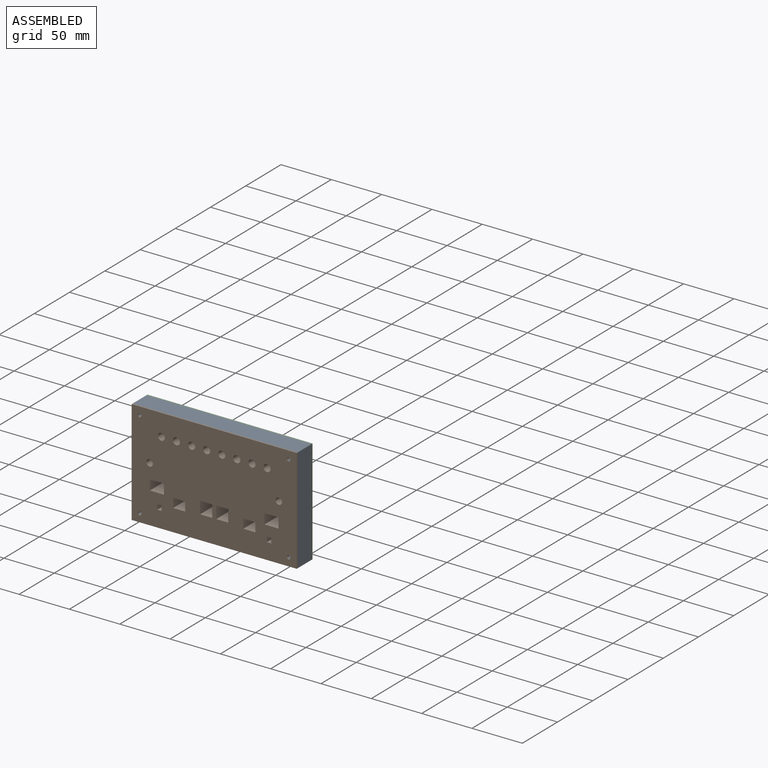
[diagram: assembled view]
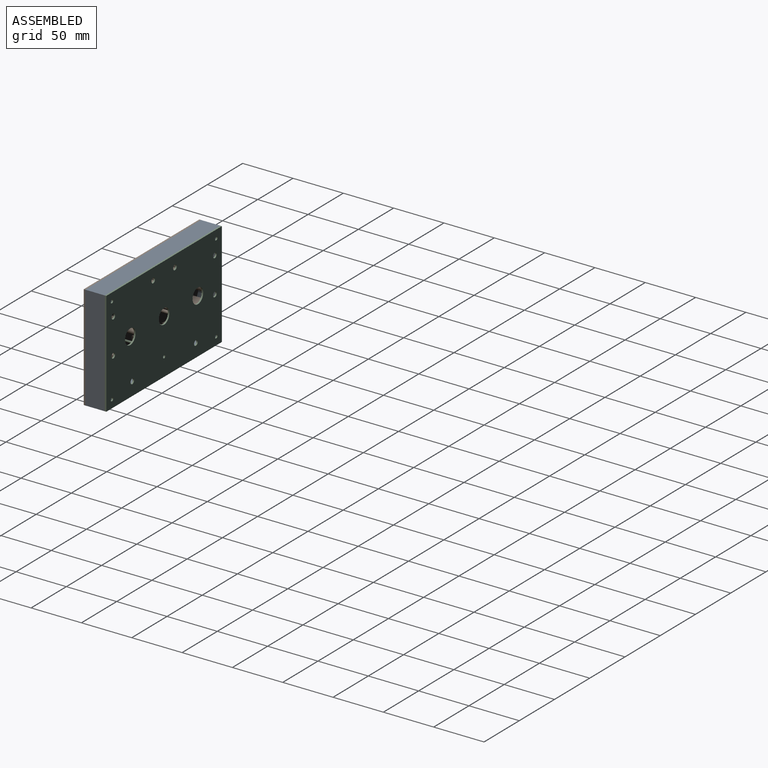
[diagram: assembled view, second angle]
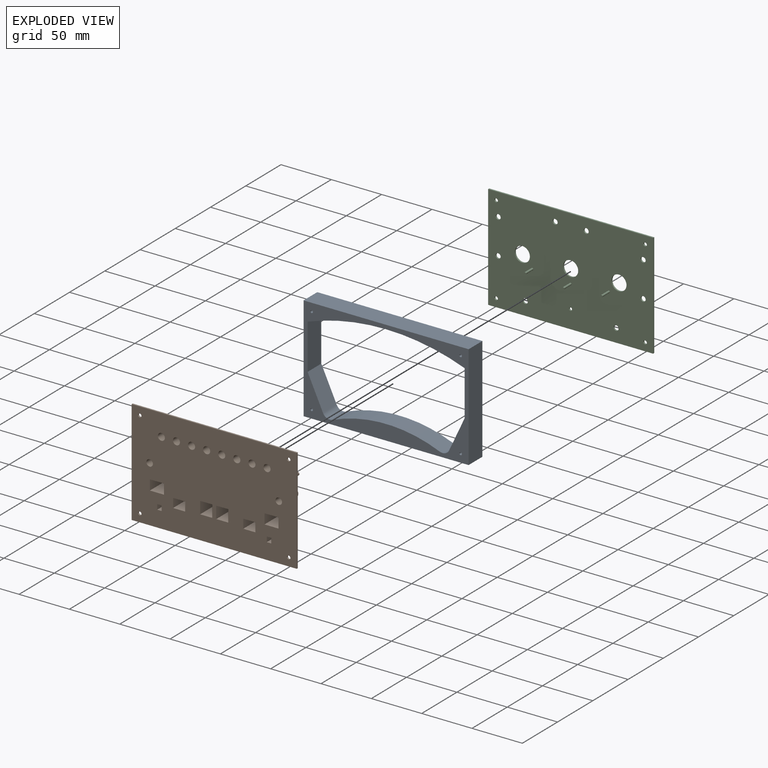
[diagram: exploded view]
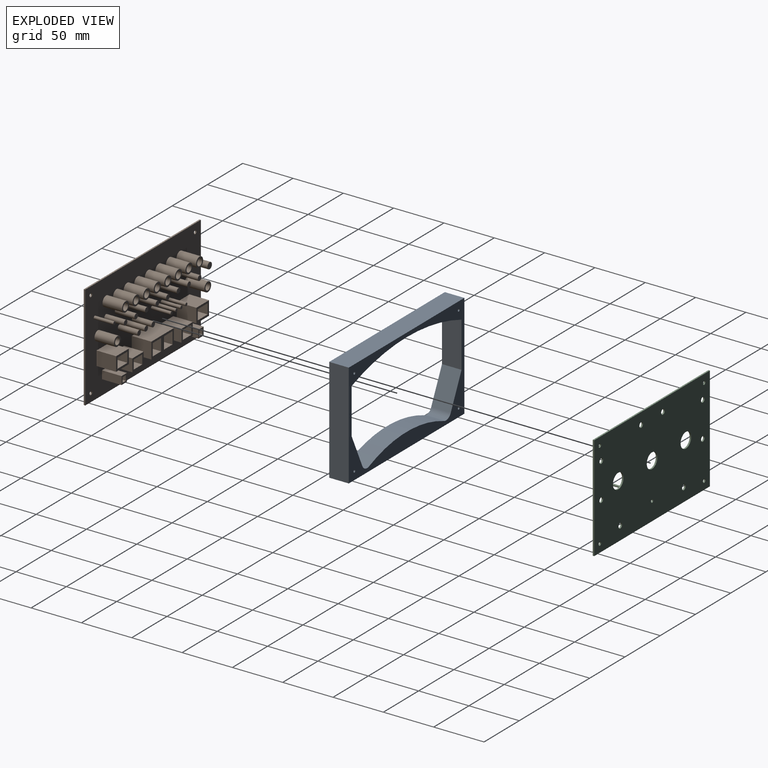
[diagram: exploded view, second angle]
ASSEMBLY  parts=3 mates=2
PART A: 18 faces, bbox 164x19.4x104 mm
  f0: plane 104x19.43mm, normal (1,0,0), area 2020.7mm2, adj f1,f11,f12,f13
  f1: plane 164x19.43mm, normal (0,0,1), area 3186.5mm2, adj f0,f2,f12,f13
  f2: plane 104x19.43mm, normal (-1,0,0), area 2020.7mm2, adj f1,f11,f12,f13
  f3: plane 45.08x19.43mm, normal (1,0,0), area 875.8mm2, adj f4,f10,f12,f13
  f4: cylinder r=224mm len=156mm, axis (0,1,0), area 3095.9mm2, adj f3,f5,f12,f13
  f5: plane 45.08x19.43mm, normal (-1,0,0), area 875.8mm2, adj f4,f6,f12,f13
  f6: plane 32.77x19.43mm, normal (-0.91,0,0.42), area 702.6mm2, adj f5,f7,f12,f13
  f7: cylinder r=7.4mm len=19.43mm, axis (0,1,0), area 219.6mm2, adj f6,f8,f12,f13
  f8: cylinder r=139mm len=106.36mm, axis (0,1,0), area 2120.7mm2, adj f7,f9,f12,f13
  f9: cylinder r=7.4mm len=19.43mm, axis (0,1,0), area 219.6mm2, adj f8,f10,f12,f13
  f10: plane 32.77x19.43mm, normal (0.91,0,0.42), area 702.6mm2, adj f3,f9,f12,f13
  f11: plane 164x19.43mm, normal (0,0,-1), area 3186.5mm2, adj f0,f2,f12,f13
  f12: plane 164x104mm, normal (0,-1,0), area 4222.6mm2, adj f0,f1,f2,f3,f4,f5,f6,f7
  f13: plane 164x104mm, normal (0,1,0), area 4222.6mm2, adj f0,f1,f2,f3,f4,f5,f6,f7
  f14: cylinder r=1.25mm len=19.43mm, axis (0,1,0), area 152.6mm2, adj f12,f13
  f15: cylinder r=1.25mm len=19.43mm, axis (0,1,0), area 152.6mm2, adj f12,f13
  f16: cylinder r=1.25mm len=19.43mm, axis (0,1,0), area 152.6mm2, adj f12,f13
  f17: cylinder r=1.25mm len=19.43mm, axis (0,1,0), area 152.6mm2, adj f12,f13
PART B: 141 faces, bbox 20.9x164x104 mm
  f0: cylinder r=3.5mm len=20.93mm, axis (-1,0,0), area 460.3mm2, adj f2,f136
  f1: cylinder r=5mm len=19.43mm, axis (-1,0,0), area 610.4mm2, adj f2,f108
  f2: plane 10x10mm, normal (1,0,0), area 40.1mm2, adj f0,f1
  f3: cylinder r=3.5mm len=20.93mm, axis (-1,0,0), area 460.3mm2, adj f5,f136
  f4: cylinder r=5mm len=19.43mm, axis (-1,0,0), area 610.4mm2, adj f5,f108
  f5: plane 10x10mm, normal (1,0,0), area 40.1mm2, adj f3,f4
  f6: cylinder r=3.5mm len=20.93mm, axis (-1,0,0), area 460.3mm2, adj f8,f136
  f7: cylinder r=5mm len=19.43mm, axis (-1,0,0), area 610.4mm2, adj f8,f108
  f8: plane 10x10mm, normal (1,0,0), area 40.1mm2, adj f6,f7
  f9: cylinder r=3.5mm len=20.93mm, axis (-1,0,0), area 460.3mm2, adj f11,f136
  f10: cylinder r=5mm len=19.43mm, axis (-1,0,0), area 610.4mm2, adj f11,f108
  f11: plane 10x10mm, normal (1,0,0), area 40.1mm2, adj f9,f10
  f12: cylinder r=3.5mm len=20.93mm, axis (-1,0,0), area 460.3mm2, adj f14,f136
  f13: cylinder r=5mm len=19.43mm, axis (-1,0,0), area 610.4mm2, adj f14,f108
  f14: plane 10x10mm, normal (1,0,0), area 40.1mm2, adj f12,f13
  f15: cylinder r=3.5mm len=20.93mm, axis (-1,0,0), area 460.3mm2, adj f17,f136
  f16: cylinder r=5mm len=19.43mm, axis (-1,0,0), area 610.4mm2, adj f17,f108
  f17: plane 10x10mm, normal (1,0,0), area 40.1mm2, adj f15,f16
  f18: cylinder r=3.5mm len=20.93mm, axis (-1,0,0), area 460.3mm2, adj f20,f136
  f19: cylinder r=5mm len=19.43mm, axis (-1,0,0), area 610.4mm2, adj f20,f108
  f20: plane 10x10mm, normal (1,0,0), area 40.1mm2, adj f18,f19
  f21: cylinder r=3.5mm len=20.93mm, axis (-1,0,0), area 460.3mm2, adj f23,f136
  f22: cylinder r=5mm len=19.43mm, axis (-1,0,0), area 610.4mm2, adj f23,f108
  f23: plane 10x10mm, normal (1,0,0), area 40.1mm2, adj f21,f22
  f24: cylinder r=3.25mm len=20.93mm, axis (-1,0,0), area 427.4mm2, adj f26,f136
  f25: cylinder r=4.76mm len=19.43mm, axis (-1,0,0), area 581.4mm2, adj f26,f108
  f26: plane 9.53x9.53mm, normal (1,0,0), area 38.1mm2, adj f24,f25
  f27: cylinder r=2.5mm len=19.43mm, axis (-1,0,0), area 305.2mm2, adj f28,f108
  f28: plane 5x5mm, normal (1,0,0), area 19.6mm2, adj f27
  f29: cylinder r=2.5mm len=19.43mm, axis (-1,0,0), area 305.2mm2, adj f30,f108
  f30: plane 5x5mm, normal (1,0,0), area 19.6mm2, adj f29
  f31: cylinder r=2.5mm len=19.43mm, axis (-1,0,0), area 305.2mm2, adj f32,f108
  f32: plane 5x5mm, normal (1,0,0), area 19.6mm2, adj f31
  f33: cylinder r=1.5mm len=19.43mm, axis (-1,0,0), area 183.1mm2, adj f34,f108
  f34: plane 3x3mm, normal (1,0,0), area 7.1mm2, adj f33
  f35: cylinder r=1.5mm len=19.43mm, axis (-1,0,0), area 183.1mm2, adj f36,f108
  f36: plane 3x3mm, normal (1,0,0), area 7.1mm2, adj f35
  f37: cylinder r=1.5mm len=19.43mm, axis (-1,0,0), area 183.1mm2, adj f38,f108
  f38: plane 3x3mm, normal (1,0,0), area 7.1mm2, adj f37
  f39: cylinder r=1.5mm len=19.43mm, axis (-1,0,0), area 183.1mm2, adj f40,f108
  f40: plane 3x3mm, normal (1,0,0), area 7.1mm2, adj f39
  f41: cylinder r=1.5mm len=19.43mm, axis (-1,0,0), area 183.1mm2, adj f42,f108
  f42: plane 3x3mm, normal (1,0,0), area 7.1mm2, adj f41
  f43: cylinder r=2.5mm len=19.43mm, axis (-1,0,0), area 305.2mm2, adj f44,f108
  f44: plane 5x5mm, normal (1,0,0), area 19.6mm2, adj f43
  f45: cylinder r=2.5mm len=19.43mm, axis (-1,0,0), area 305.2mm2, adj f46,f108
  f46: plane 5x5mm, normal (1,0,0), area 19.6mm2, adj f45
  f47: cylinder r=2.5mm len=19.43mm, axis (-1,0,0), area 305.2mm2, adj f48,f108
  f48: plane 5x5mm, normal (1,0,0), area 19.6mm2, adj f47
  f49: cylinder r=2.5mm len=19.43mm, axis (-1,0,0), area 305.2mm2, adj f50,f108
  f50: plane 5x5mm, normal (1,0,0), area 19.6mm2, adj f49
  f51: cylinder r=2.5mm len=19.43mm, axis (-1,0,0), area 305.2mm2, adj f52,f108
  f52: plane 5x5mm, normal (1,0,0), area 19.6mm2, adj f51
  f53: cylinder r=2.5mm len=19.43mm, axis (-1,0,0), area 305.2mm2, adj f54,f108
  f54: plane 5x5mm, normal (1,0,0), area 19.6mm2, adj f53
  f55: cylinder r=2.5mm len=19.43mm, axis (-1,0,0), area 305.2mm2, adj f56,f108
  f56: plane 5x5mm, normal (1,0,0), area 19.6mm2, adj f55
  f57: cylinder r=2.5mm len=19.43mm, axis (-1,0,0), area 305.2mm2, adj f58,f108
  f58: plane 5x5mm, normal (1,0,0), area 19.6mm2, adj f57
  f59: plane 20.93x12mm, normal (0,1,0), area 251.2mm2, adj f60,f70,f71,f136
  f60: plane 20.93x12mm, normal (0,0,-1), area 251.2mm2, adj f59,f61,f71,f136
  f61: plane 20.93x12mm, normal (0,-1,0), area 251.2mm2, adj f60,f70,f71,f136
  f62: plane 20.93x12mm, normal (0,0,1), area 251.2mm2, adj f63,f68,f71,f136
  f63: plane 20.93x12mm, normal (0,1,0), area 251.2mm2, adj f62,f64,f71,f136
  f64: plane 20.93x12mm, normal (0,0,-1), area 251.2mm2, adj f63,f68,f71,f136
  f65: plane 32x19.43mm, normal (0,0,1), area 621.8mm2, adj f66,f69,f71,f108
  f66: plane 19.43x16mm, normal (0,-1,0), area 310.9mm2, adj f65,f67,f71,f108
  f67: plane 32x19.43mm, normal (0,0,-1), area 621.8mm2, adj f66,f69,f71,f108
  f68: plane 20.93x12mm, normal (0,-1,0), area 251.2mm2, adj f62,f64,f71,f136
  f69: plane 19.43x16mm, normal (0,1,0), area 310.9mm2, adj f65,f67,f71,f108
  f70: plane 20.93x12mm, normal (0,0,1), area 251.2mm2, adj f59,f61,f71,f136
  f71: plane 32x16mm, normal (1,0,0), area 224mm2, adj f59,f60,f61,f62,f63,f64,f65,f66
  f72: plane 20.93x12mm, normal (0,0,1), area 251.2mm2, adj f73,f79,f80,f136
  f73: plane 20.93x9mm, normal (0,1,0), area 188.4mm2, adj f72,f74,f80,f136
  f74: plane 20.93x12mm, normal (0,0,-1), area 251.2mm2, adj f73,f79,f80,f136
  f75: plane 19.43x16mm, normal (0,0,1), area 310.9mm2, adj f76,f78,f80,f108
  f76: plane 19.43x12.5mm, normal (0,-1,0), area 242.9mm2, adj f75,f77,f80,f108
  f77: plane 19.43x16mm, normal (0,0,-1), area 310.9mm2, adj f76,f78,f80,f108
  f78: plane 19.43x12.5mm, normal (0,1,0), area 242.9mm2, adj f75,f77,f80,f108
  f79: plane 20.93x9mm, normal (0,-1,0), area 188.4mm2, adj f72,f74,f80,f136
  f80: plane 16x12.5mm, normal (1,0,0), area 92mm2, adj f72,f73,f74,f75,f76,f77,f78,f79
  f81: plane 20.93x14mm, normal (0,0,1), area 293mm2, adj f82,f88,f89,f136
  f82: plane 20.93x10mm, normal (0,1,0), area 209.3mm2, adj f81,f83,f89,f136
  f83: plane 20.93x14mm, normal (0,0,-1), area 293mm2, adj f82,f88,f89,f136
  f84: plane 19.43x18mm, normal (0,0,1), area 349.7mm2, adj f85,f87,f89,f108
  f85: plane 19.43x14mm, normal (0,-1,0), area 272mm2, adj f84,f86,f89,f108
  f86: plane 19.43x18mm, normal (0,0,-1), area 349.7mm2, adj f85,f87,f89,f108
  f87: plane 19.43x14mm, normal (0,1,0), area 272mm2, adj f84,f86,f89,f108
  f88: plane 20.93x10mm, normal (0,-1,0), area 209.3mm2, adj f81,f83,f89,f136
  f89: plane 18x14mm, normal (1,0,0), area 112mm2, adj f81,f82,f83,f84,f85,f86,f87,f88
  f90: plane 19.43x7.5mm, normal (0,0,1), area 145.7mm2, adj f91,f97,f98,f108
  f91: plane 19.43x8mm, normal (0,-1,0), area 155.4mm2, adj f90,f92,f98,f108
  f92: plane 19.43x7.5mm, normal (0,0,-1), area 145.7mm2, adj f91,f97,f98,f108
  f93: plane 20.93x4.5mm, normal (0,0,-1), area 94.2mm2, adj f94,f96,f98,f136
  f94: plane 20.93x5mm, normal (0,-1,0), area 104.7mm2, adj f93,f95,f98,f136
  f95: plane 20.93x4.5mm, normal (0,0,1), area 94.2mm2, adj f94,f96,f98,f136
  f96: plane 20.93x5mm, normal (0,1,0), area 104.7mm2, adj f93,f95,f98,f136
  f97: plane 19.43x8mm, normal (0,1,0), area 155.4mm2, adj f90,f92,f98,f108
  f98: plane 8x7.5mm, normal (1,0,0), area 37.5mm2, adj f90,f91,f92,f93,f94,f95,f96,f97
  f99: plane 19.43x18mm, normal (0,0,1), area 349.7mm2, adj f100,f106,f107,f108
  f100: plane 19.43x14mm, normal (0,-1,0), area 272mm2, adj f99,f101,f107,f108
  f101: plane 19.43x18mm, normal (0,0,-1), area 349.7mm2, adj f100,f106,f107,f108
  f102: plane 20.93x14mm, normal (0,0,1), area 293mm2, adj f103,f105,f107,f136
  f103: plane 20.93x10mm, normal (0,1,0), area 209.3mm2, adj f102,f104,f107,f136
  f104: plane 20.93x14mm, normal (0,0,-1), area 293mm2, adj f103,f105,f107,f136
  f105: plane 20.93x10mm, normal (0,-1,0), area 209.3mm2, adj f102,f104,f107,f136
  f106: plane 19.43x14mm, normal (0,1,0), area 272mm2, adj f99,f101,f107,f108
  f107: plane 18x14mm, normal (1,0,0), area 112mm2, adj f99,f100,f101,f102,f103,f104,f105,f106
  f108: plane 164x104mm, normal (1,0,0), area 14429.9mm2, adj f1,f4,f7,f10,f13,f16,f19,f22
  f109: plane 19.43x16mm, normal (0,0,1), area 310.9mm2, adj f108,f110,f116,f117
  f110: plane 19.43x12.5mm, normal (0,-1,0), area 242.9mm2, adj f108,f109,f111,f117
  f111: plane 19.43x16mm, normal (0,0,-1), area 310.9mm2, adj f108,f110,f116,f117
  f112: plane 20.93x12mm, normal (0,0,1), area 251.2mm2, adj f113,f115,f117,f136
  f113: plane 20.93x9mm, normal (0,1,0), area 188.4mm2, adj f112,f114,f117,f136
  f114: plane 20.93x12mm, normal (0,0,-1), area 251.2mm2, adj f113,f115,f117,f136
  f115: plane 20.93x9mm, normal (0,-1,0), area 188.4mm2, adj f112,f114,f117,f136
  f116: plane 19.43x12.5mm, normal (0,1,0), area 242.9mm2, adj f108,f109,f111,f117
  f117: plane 16x12.5mm, normal (1,0,0), area 92mm2, adj f109,f110,f111,f112,f113,f114,f115,f116
  f118: plane 19.43x7.5mm, normal (0,0,1), area 145.7mm2, adj f108,f119,f125,f126
  f119: plane 19.43x8mm, normal (0,-1,0), area 155.4mm2, adj f108,f118,f120,f126
  f120: plane 19.43x7.5mm, normal (0,0,-1), area 145.7mm2, adj f108,f119,f125,f126
  f121: plane 20.93x4.5mm, normal (0,0,1), area 94.2mm2, adj f122,f124,f126,f136
  f122: plane 20.93x5mm, normal (0,1,0), area 104.7mm2, adj f121,f123,f126,f136
  f123: plane 20.93x4.5mm, normal (0,0,-1), area 94.2mm2, adj f122,f124,f126,f136
  f124: plane 20.93x5mm, normal (0,-1,0), area 104.7mm2, adj f121,f123,f126,f136
  f125: plane 19.43x8mm, normal (0,1,0), area 155.4mm2, adj f108,f118,f120,f126
  f126: plane 8x7.5mm, normal (1,0,0), area 37.5mm2, adj f118,f119,f120,f121,f122,f123,f124,f125
  f127: cylinder r=4.76mm len=19.43mm, axis (-1,0,0), area 581.4mm2, adj f108,f129
  f128: cylinder r=3.25mm len=20.93mm, axis (-1,0,0), area 427.4mm2, adj f129,f136
  f129: plane 9.53x9.53mm, normal (1,0,0), area 38.1mm2, adj f127,f128
  f130: cylinder r=3.17mm len=19.43mm, axis (-1,0,0), area 387.6mm2, adj f108,f131
  f131: plane 6.35x6.35mm, normal (1,0,0), area 31.7mm2, adj f130
  f132: plane 104x1.5mm, normal (0,1,0), area 156mm2, adj f108,f133,f135,f136
  f133: plane 164x1.5mm, normal (0,0,1), area 246mm2, adj f108,f132,f134,f136
  f134: plane 104x1.5mm, normal (0,-1,0), area 156mm2, adj f108,f133,f135,f136
  f135: plane 164x1.5mm, normal (0,0,-1), area 246mm2, adj f108,f132,f134,f136
  f136: plane 164x104mm, normal (-1,0,0), area 15816.4mm2, adj f0,f3,f6,f9,f12,f15,f18,f21
  f137: cylinder r=1.7mm len=3.4mm, axis (1,0,0), area 16mm2, adj f108,f136
  f138: cylinder r=1.7mm len=3.4mm, axis (1,0,0), area 16mm2, adj f108,f136
  f139: cylinder r=1.7mm len=3.4mm, axis (1,0,0), area 16mm2, adj f108,f136
  f140: cylinder r=1.7mm len=3.4mm, axis (1,0,0), area 16mm2, adj f108,f136
PART C: 28 faces, bbox 12x164x104 mm
  f0: plane 104x1.5mm, normal (0,1,0), area 156mm2, adj f1,f14,f16,f17
  f1: plane 164x1.5mm, normal (0,0,1), area 246mm2, adj f0,f2,f16,f17
  f2: plane 104x1.5mm, normal (0,-1,0), area 156mm2, adj f1,f14,f16,f17
  f3: cylinder r=2.5mm len=5mm, axis (1,0,0), area 23.6mm2, adj f16,f17
  f4: cylinder r=2.5mm len=5mm, axis (1,0,0), area 23.6mm2, adj f16,f17
  f5: cylinder r=1.5mm len=3mm, axis (1,0,0), area 14.1mm2, adj f16,f17
  f6: cylinder r=2.5mm len=5mm, axis (1,0,0), area 23.6mm2, adj f16,f17
  f7: cylinder r=2.5mm len=5mm, axis (1,0,0), area 23.6mm2, adj f16,f17
  f8: cylinder r=2.5mm len=5mm, axis (1,0,0), area 23.6mm2, adj f16,f17
  f9: cylinder r=2.5mm len=5mm, axis (1,0,0), area 23.6mm2, adj f16,f17
  f10: cylinder r=2.5mm len=5mm, axis (1,0,0), area 23.6mm2, adj f16,f17
  f11: cylinder r=7.5mm len=15mm, axis (1,0,0), area 70.7mm2, adj f16,f17
  f12: cylinder r=7.5mm len=15mm, axis (1,0,0), area 70.7mm2, adj f16,f17
  f13: cylinder r=7.5mm len=15mm, axis (1,0,0), area 70.7mm2, adj f16,f17
  f14: plane 164x1.5mm, normal (0,0,-1), area 246mm2, adj f0,f2,f16,f17
  f15: cylinder r=2.5mm len=5mm, axis (1,0,0), area 23.6mm2, adj f16,f17
  f16: plane 164x104mm, normal (-1,0,0), area 16316mm2, adj f0,f1,f2,f3,f4,f5,f6,f7
  f17: plane 164x104mm, normal (1,0,0), area 16325.4mm2, adj f0,f1,f2,f3,f4,f5,f6,f7
  f18: cylinder r=1.7mm len=3.4mm, axis (1,0,0), area 16mm2, adj f16,f17
  f19: cylinder r=1.7mm len=3.4mm, axis (1,0,0), area 16mm2, adj f16,f17
  f20: cylinder r=1.7mm len=3.4mm, axis (1,0,0), area 16mm2, adj f16,f17
  f21: cylinder r=1.7mm len=3.4mm, axis (1,0,0), area 16mm2, adj f16,f17
  f22: cylinder r=1mm len=10.5mm, axis (1,0,0), area 66mm2, adj f16,f23
  f23: plane 2x2mm, normal (-1,0,0), area 3.1mm2, adj f22
  f24: cylinder r=1mm len=10.5mm, axis (1,0,0), area 66mm2, adj f16,f25
  f25: plane 2x2mm, normal (-1,0,0), area 3.1mm2, adj f24
  f26: cylinder r=1mm len=10.5mm, axis (1,0,0), area 66mm2, adj f16,f27
  f27: plane 2x2mm, normal (-1,0,0), area 3.1mm2, adj f26
PLACE A t=(128.59,-14.4,-125.31)mm
PLACE B rot(axis=(0,0,1),90deg) t=(128.59,-33.83,38.89)mm
PLACE C rot(axis=(0,0,1),90deg) t=(128.59,-12.9,38.89)mm
MATE fastened C.f18 <-> A.f17  axis (0,-1,0) through (202.59,-14.4,94.68)mm
MATE fastened B.f138 <-> A.f14  axis (0,1,0) through (54.59,-33.83,94.68)mm
